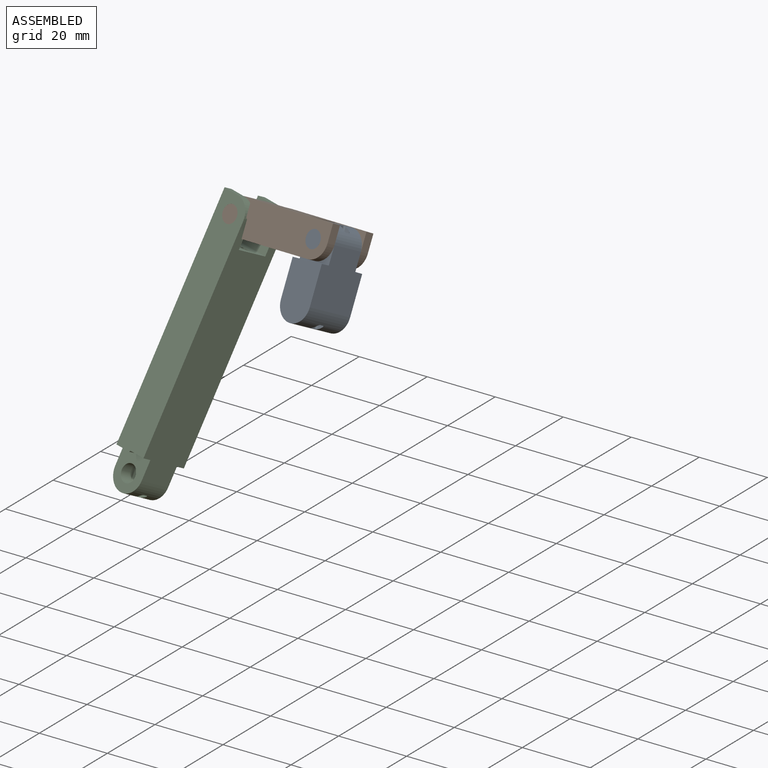
[diagram: assembled view]
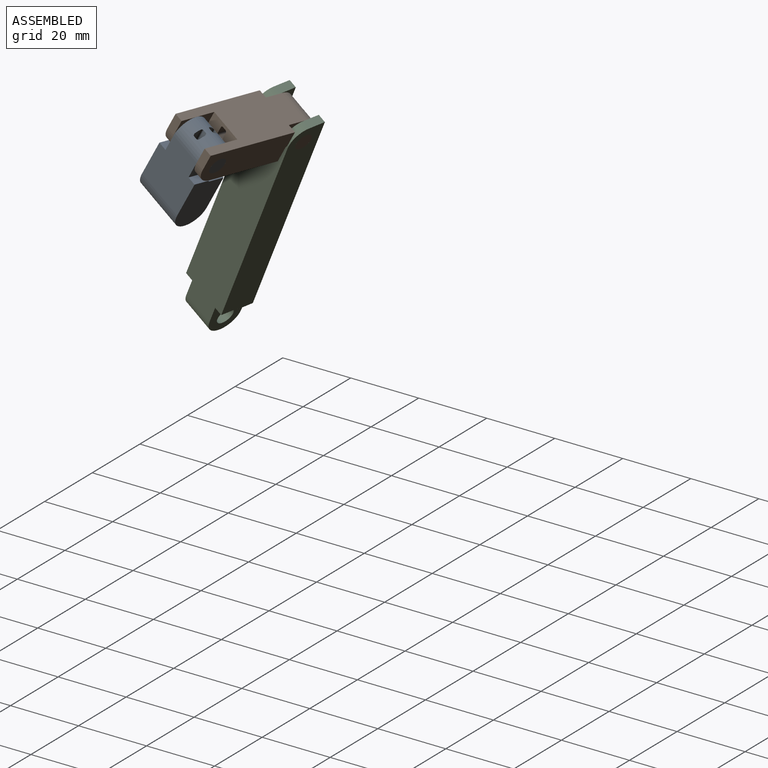
[diagram: assembled view, second angle]
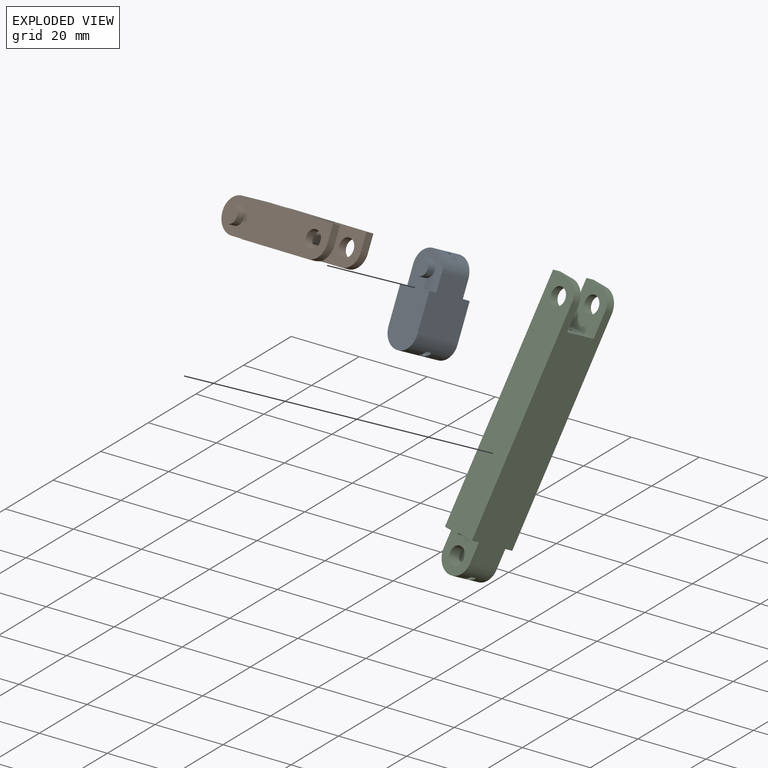
[diagram: exploded view]
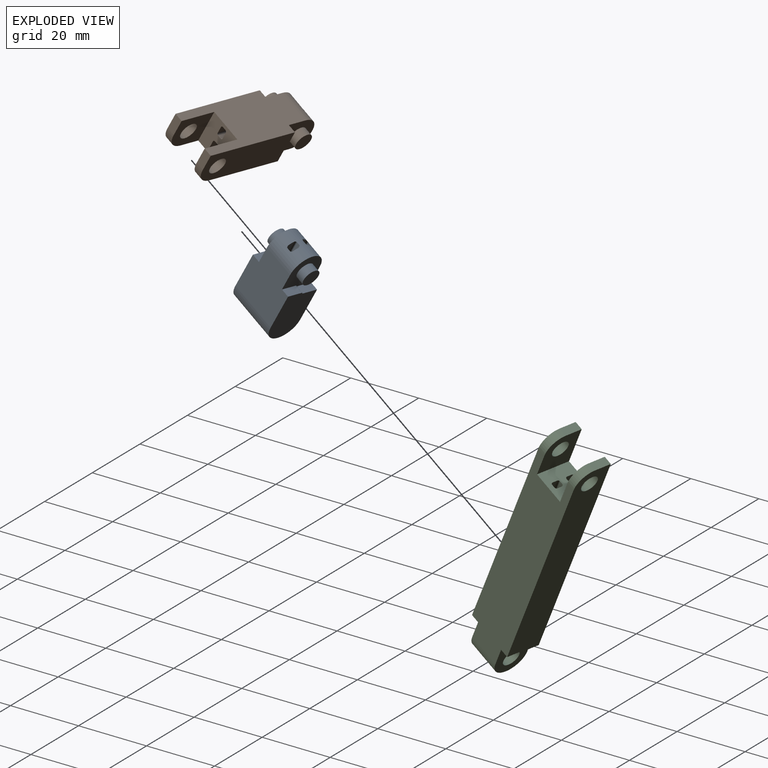
[diagram: exploded view, second angle]
ASSEMBLY  parts=3 mates=3
PART A: 34 faces, bbox 26x14.5x10 mm
  f0: cylinder r=5mm len=10mm, axis (0,1,0), area 138.3mm2, adj f2,f3,f4,f5,f16,f17,f18,f19
  f1: cylinder r=5mm len=14.5mm, axis (0,-1,0), area 216.8mm2, adj f2,f3,f10,f15,f16,f17,f18,f19
  f2: plane 16x14.5mm, normal (0,0,-1), area 204.5mm2, adj f0,f1,f4,f5,f10,f12,f13,f15
  f3: plane 16x14.5mm, normal (0,0,1), area 206.5mm2, adj f0,f1,f4,f5,f10,f11,f14,f15
  f4: plane 10.5x10mm, normal (0,-1,0), area 72.7mm2, adj f0,f2,f3,f8,f13,f14,f32
  f5: plane 10.5x10mm, normal (0,1,0), area 72.7mm2, adj f0,f2,f3,f7,f11,f12,f33
  f6: plane 5x5mm, normal (0,1,0), area 19.6mm2, adj f7
  f7: cylinder r=2.5mm len=5mm, axis (0,1,0), area 39.3mm2, adj f5,f6
  f8: cylinder r=2.5mm len=5mm, axis (0,1,0), area 39.3mm2, adj f4,f9
  f9: plane 5x5mm, normal (0,-1,0), area 19.6mm2, adj f8
  f10: plane 15.9x10mm, normal (0,1,0), area 146.2mm2, adj f1,f2,f3,f11,f12,f33
  f11: plane 4.6x2.5mm, normal (-1,0,0), area 11.5mm2, adj f3,f5,f10,f33
  f12: plane 5x2.5mm, normal (-1,0,0), area 12.5mm2, adj f2,f5,f10,f33
  f13: plane 5x2.5mm, normal (-1,0,0), area 12.5mm2, adj f2,f4,f15,f32
  f14: plane 4.6x2.5mm, normal (-1,0,0), area 11.5mm2, adj f3,f4,f15,f32
  f15: plane 15.9x10mm, normal (0,-1,0), area 146.2mm2, adj f1,f2,f3,f13,f14,f32
  f16: plane 23.14x1mm, normal (0,0,1), area 23.1mm2, adj f0,f1,f17,f23
  f17: cylinder r=0.5mm len=24mm, axis (-1,0,0), area 18.4mm2, adj f0,f1,f16,f18
  f18: plane 25.54x1.5mm, normal (0,-1,0), area 37.3mm2, adj f0,f1,f17,f19
  f19: cylinder r=0.5mm len=25.8mm, axis (-1,0,0), area 20.2mm2, adj f0,f1,f18,f20
  f20: plane 25.8x1mm, normal (0,0,-1), area 25.8mm2, adj f0,f1,f19,f21
  f21: cylinder r=0.5mm len=25.8mm, axis (-1,0,0), area 20.2mm2, adj f0,f1,f20,f22
  f22: plane 25.54x1.5mm, normal (0,1,0), area 37.3mm2, adj f0,f1,f21,f23
  f23: cylinder r=0.5mm len=24mm, axis (-1,0,0), area 18.4mm2, adj f0,f1,f16,f22
  f24: plane 25.8x1mm, normal (0,0,1), area 25.8mm2, adj f0,f1,f25,f31
  f25: cylinder r=0.5mm len=25.8mm, axis (-1,0,0), area 20.2mm2, adj f0,f1,f24,f26
  f26: plane 25.54x1.5mm, normal (0,-1,0), area 37.3mm2, adj f0,f1,f25,f27
  f27: cylinder r=0.5mm len=24mm, axis (-1,0,0), area 18.4mm2, adj f0,f1,f26,f28
  f28: plane 23.14x1mm, normal (0,0,-1), area 23.1mm2, adj f0,f1,f27,f29
  f29: cylinder r=0.5mm len=24mm, axis (-1,0,0), area 18.4mm2, adj f0,f1,f28,f30
  f30: plane 25.54x1.5mm, normal (0,1,0), area 37.3mm2, adj f0,f1,f29,f31
  f31: cylinder r=0.5mm len=25.8mm, axis (-1,0,0), area 20.2mm2, adj f0,f1,f24,f30
  f32: cylinder r=0.4mm len=2.5mm, axis (0,1,0), area 1.6mm2, adj f4,f13,f14,f15
  f33: cylinder r=0.4mm len=2.5mm, axis (0,1,0), area 1.6mm2, adj f5,f10,f11,f12
PART B: 42 faces, bbox 39x14.5x10 mm
  f0: cylinder r=5mm len=5mm, axis (0,-1,0), area 19.6mm2, adj f1,f14,f15,f38
  f1: plane 29x14.5mm, normal (0,0,-1), area 333.5mm2, adj f0,f2,f4,f5,f10,f12,f14,f15
  f2: plane 10x9.5mm, normal (1,0,0), area 83.4mm2, adj f1,f3,f10,f15,f22,f23,f24,f25
  f3: plane 34x14.5mm, normal (0,0,1), area 360.5mm2, adj f2,f4,f5,f10,f12,f14,f15,f17
  f4: plane 11x10mm, normal (0,-1,0), area 77.7mm2, adj f1,f3,f8,f17,f20,f21,f41
  f5: plane 11x10mm, normal (0,1,0), area 77.7mm2, adj f1,f3,f7,f17,f18,f19,f40
  f6: plane 5x5mm, normal (0,1,0), area 19.6mm2, adj f7
  f7: cylinder r=2.5mm len=5mm, axis (0,1,0), area 39.3mm2, adj f5,f6
  f8: cylinder r=2.5mm len=5mm, axis (0,1,0), area 39.3mm2, adj f4,f9
  f9: plane 5x5mm, normal (0,-1,0), area 19.6mm2, adj f8
  f10: plane 11x10mm, normal (0,1,0), area 85mm2, adj f1,f2,f3,f11,f16,f39
  f11: cylinder r=2.5mm len=5mm, axis (0,1,0), area 39.3mm2, adj f10,f12
  f12: plane 28.4x10mm, normal (0,-1,0), area 257mm2, adj f1,f3,f11,f16,f20,f21,f39,f41
  f13: cylinder r=2.5mm len=5mm, axis (0,-1,0), area 39.3mm2, adj f14,f15
  f14: plane 28.4x10mm, normal (0,1,0), area 257mm2, adj f0,f1,f3,f13,f18,f19,f38,f40
  f15: plane 11x10mm, normal (0,-1,0), area 85mm2, adj f0,f1,f2,f3,f13,f38
  f16: cylinder r=5mm len=5mm, axis (0,1,0), area 19.6mm2, adj f1,f10,f12,f39
  f17: cylinder r=5mm len=10mm, axis (0,1,0), area 135.3mm2, adj f1,f3,f4,f5,f22,f23,f24,f25
  f18: plane 5x2.5mm, normal (-1,0,0), area 12.5mm2, adj f1,f5,f14,f40
  f19: plane 4.6x2.5mm, normal (-1,0,0), area 11.5mm2, adj f3,f5,f14,f40
  f20: plane 4.6x2.5mm, normal (-1,0,0), area 11.5mm2, adj f3,f4,f12,f41
  f21: plane 5x2.5mm, normal (-1,0,0), area 12.5mm2, adj f1,f4,f12,f41
  f22: cylinder r=0.5mm len=27.9mm, axis (-1,0,0), area 21.9mm2, adj f2,f17,f23,f29
  f23: plane 27.9x1mm, normal (0,0,-1), area 27.9mm2, adj f2,f17,f22,f24
  f24: cylinder r=0.5mm len=27.9mm, axis (-1,0,0), area 21.9mm2, adj f2,f17,f23,f25
  f25: plane 27.77x2mm, normal (0,1,0), area 54.6mm2, adj f2,f17,f24,f26
  f26: cylinder r=0.5mm len=26.57mm, axis (-1,0,0), area 20.6mm2, adj f2,f17,f25,f27
  f27: plane 26x1mm, normal (0,0,1), area 26mm2, adj f2,f17,f26,f28
  f28: cylinder r=0.5mm len=26.57mm, axis (-1,0,0), area 20.6mm2, adj f2,f17,f27,f29
  f29: plane 27.77x2mm, normal (0,-1,0), area 54.6mm2, adj f2,f17,f22,f28
  f30: plane 27.77x2mm, normal (0,-1,0), area 54.6mm2, adj f2,f17,f31,f37
  f31: cylinder r=0.5mm len=26.57mm, axis (-1,0,0), area 20.6mm2, adj f2,f17,f30,f32
  f32: plane 26x1mm, normal (0,0,-1), area 26mm2, adj f2,f17,f31,f33
  f33: cylinder r=0.5mm len=26.57mm, axis (-1,0,0), area 20.6mm2, adj f2,f17,f32,f34
  f34: plane 27.77x2mm, normal (0,1,0), area 54.6mm2, adj f2,f17,f33,f35
  f35: cylinder r=0.5mm len=27.9mm, axis (-1,0,0), area 21.9mm2, adj f2,f17,f34,f36
  f36: plane 27.9x1mm, normal (0,0,1), area 27.9mm2, adj f2,f17,f35,f37
  f37: cylinder r=0.5mm len=27.9mm, axis (-1,0,0), area 21.9mm2, adj f2,f17,f30,f36
  f38: plane 5x2.5mm, normal (1,0,0), area 12.5mm2, adj f0,f3,f14,f15
  f39: plane 5x2.5mm, normal (1,0,0), area 12.5mm2, adj f3,f10,f12,f16
  f40: cylinder r=0.4mm len=2.5mm, axis (0,1,0), area 1.6mm2, adj f5,f14,f18,f19
  f41: cylinder r=0.4mm len=2.5mm, axis (0,1,0), area 1.6mm2, adj f4,f12,f20,f21
PART C: 45 faces, bbox 78x14.5x10 mm
  f0: cylinder r=5mm len=5mm, axis (0,-1,0), area 19.6mm2, adj f2,f4,f6,f41
  f1: cylinder r=2.5mm len=9.5mm, axis (0,1,0), area 126.5mm2, adj f7,f9,f19,f20,f21,f25,f26,f27
  f2: plane 12x10mm, normal (0,1,0), area 95mm2, adj f0,f3,f4,f5,f8,f41
  f3: plane 73x14.5mm, normal (0,0,-1), area 919mm2, adj f2,f6,f7,f8,f9,f10,f11,f13
  f4: plane 68x14.5mm, normal (0,0,1), area 892mm2, adj f0,f2,f6,f7,f8,f9,f10,f11
  f5: cylinder r=2.5mm len=5mm, axis (0,1,0), area 39.3mm2, adj f2,f6
  f6: plane 67.9x10mm, normal (0,-1,0), area 652mm2, adj f0,f3,f4,f5,f17,f18,f41,f43
  f7: plane 10.5x10mm, normal (0,-1,0), area 72.7mm2, adj f1,f3,f4,f10,f17,f18,f43
  f8: plane 10x9.5mm, normal (-1,0,0), area 85.4mm2, adj f2,f3,f4,f11,f19,f21,f22,f23
  f9: plane 10.5x10mm, normal (0,1,0), area 72.7mm2, adj f1,f3,f4,f10,f15,f16,f44
  f10: cylinder r=5mm len=10mm, axis (0,-1,0), area 138.3mm2, adj f3,f4,f7,f9,f20,f22,f23,f24
  f11: plane 12x10mm, normal (0,-1,0), area 95mm2, adj f3,f4,f8,f12,f14,f42
  f12: cylinder r=2.5mm len=5mm, axis (0,-1,0), area 39.3mm2, adj f11,f13
  f13: plane 67.9x10mm, normal (0,1,0), area 652mm2, adj f3,f4,f12,f14,f15,f16,f42,f44
  f14: cylinder r=5mm len=5mm, axis (0,1,0), area 19.6mm2, adj f4,f11,f13,f42
  f15: plane 4.6x2.5mm, normal (1,0,0), area 11.5mm2, adj f3,f9,f13,f44
  f16: plane 5x2.5mm, normal (1,0,0), area 12.5mm2, adj f4,f9,f13,f44
  f17: plane 5x2.5mm, normal (1,0,0), area 12.5mm2, adj f4,f6,f7,f43
  f18: plane 4.6x2.5mm, normal (1,0,0), area 11.5mm2, adj f3,f6,f7,f43
  f19: cylinder r=0.5mm len=59mm, axis (-1,0,0), area 46.2mm2, adj f1,f8,f25,f27
  f20: plane 2.61x1mm, normal (0,0,-1), area 2.6mm2, adj f1,f10,f26,f28
  f21: cylinder r=0.5mm len=59mm, axis (-1,0,0), area 46.2mm2, adj f1,f8,f27,f29
  f22: cylinder r=0.5mm len=65mm, axis (-1,0,0), area 50.8mm2, adj f8,f10,f23,f29
  f23: plane 64.57x1mm, normal (0,0,1), area 64.6mm2, adj f8,f10,f22,f24
  f24: cylinder r=0.5mm len=65mm, axis (-1,0,0), area 50.8mm2, adj f8,f10,f23,f25
  f25: plane 65.77x1.5mm, normal (0,-1,0), area 95.4mm2, adj f1,f8,f10,f19,f24,f26
  f26: cylinder r=0.5mm len=2.9mm, axis (-1,0,0), area 2.1mm2, adj f1,f10,f20,f25
  f27: plane 58.71x1mm, normal (0,0,-1), area 58.7mm2, adj f1,f8,f19,f21
  f28: cylinder r=0.5mm len=2.9mm, axis (-1,0,0), area 2.1mm2, adj f1,f10,f20,f29
  f29: plane 65.77x1.5mm, normal (0,1,0), area 95.4mm2, adj f1,f8,f10,f21,f22,f28
  f30: cylinder r=0.5mm len=2.9mm, axis (-1,0,0), area 2.1mm2, adj f1,f10,f31,f37
  f31: plane 2.61x1mm, normal (0,0,1), area 2.6mm2, adj f1,f10,f30,f32
  f32: cylinder r=0.5mm len=2.9mm, axis (-1,0,0), area 2.1mm2, adj f1,f10,f31,f33
  f33: plane 65.77x1.5mm, normal (0,-1,0), area 95.4mm2, adj f1,f8,f10,f32,f34,f40
  f34: cylinder r=0.5mm len=65mm, axis (-1,0,0), area 50.8mm2, adj f8,f10,f33,f35
  f35: plane 64.57x1mm, normal (0,0,-1), area 64.6mm2, adj f8,f10,f34,f36
  f36: cylinder r=0.5mm len=65mm, axis (-1,0,0), area 50.8mm2, adj f8,f10,f35,f37
  f37: plane 65.77x1.5mm, normal (0,1,0), area 95.4mm2, adj f1,f8,f10,f30,f36,f38
  f38: cylinder r=0.5mm len=59mm, axis (-1,0,0), area 46.2mm2, adj f1,f8,f37,f39
  f39: plane 58.71x1mm, normal (0,0,1), area 58.7mm2, adj f1,f8,f38,f40
  f40: cylinder r=0.5mm len=59mm, axis (-1,0,0), area 46.2mm2, adj f1,f8,f33,f39
  f41: plane 5x2.5mm, normal (-1,0,0), area 12.5mm2, adj f0,f2,f3,f6
  f42: plane 5x2.5mm, normal (-1,0,0), area 12.5mm2, adj f3,f11,f13,f14
  f43: cylinder r=0.4mm len=2.5mm, axis (0,1,0), area 1.6mm2, adj f6,f7,f17,f18
  f44: cylinder r=0.4mm len=2.5mm, axis (0,1,0), area 1.6mm2, adj f9,f13,f15,f16
PLACE A rot(axis=(-0.13,0.93,-0.34),90.9deg) t=(8.64,15.86,20.94)mm
PLACE B rot(axis=(-0.91,-0.1,-0.4),30.5deg) t=(-19.67,16.63,9.14)mm
PLACE C rot(axis=(-0.1,0.94,-0.33),100.3deg) t=(-20.78,16.36,8.12)mm
MATE revolute A.f0 <-> B.f0  axis (-0.21,-0.86,0.46) through (10.96,2.22,22.53)mm
MATE revolute C.f0 <-> B.f7  axis (-0.21,-0.86,0.46) through (-17.37,7.68,19.56)mm
MATE revolute A.f0 <-> B.f0  axis (-0.21,-0.86,0.46) through (10.96,2.22,22.53)mm
